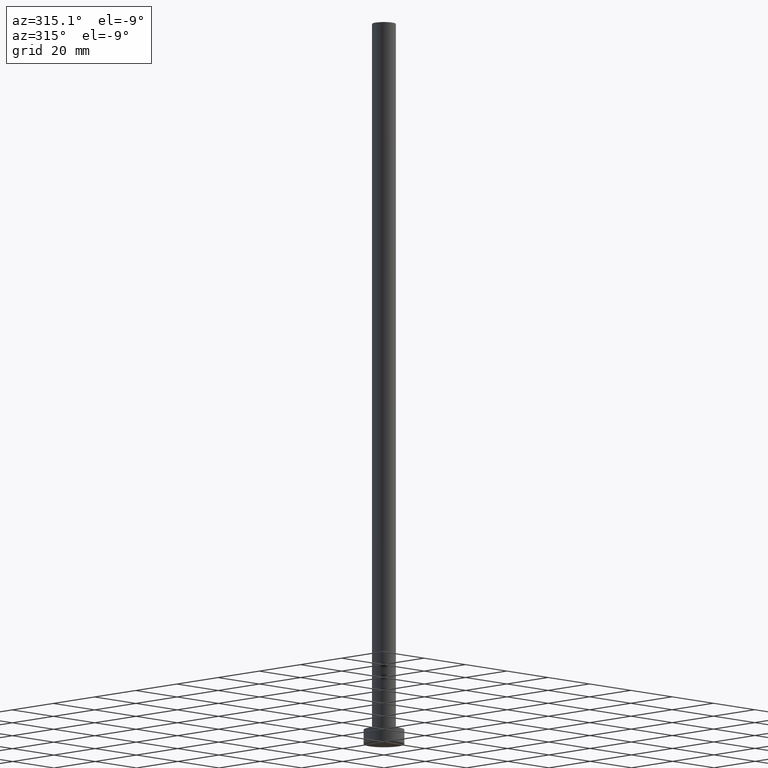
[diagram: clean part render]
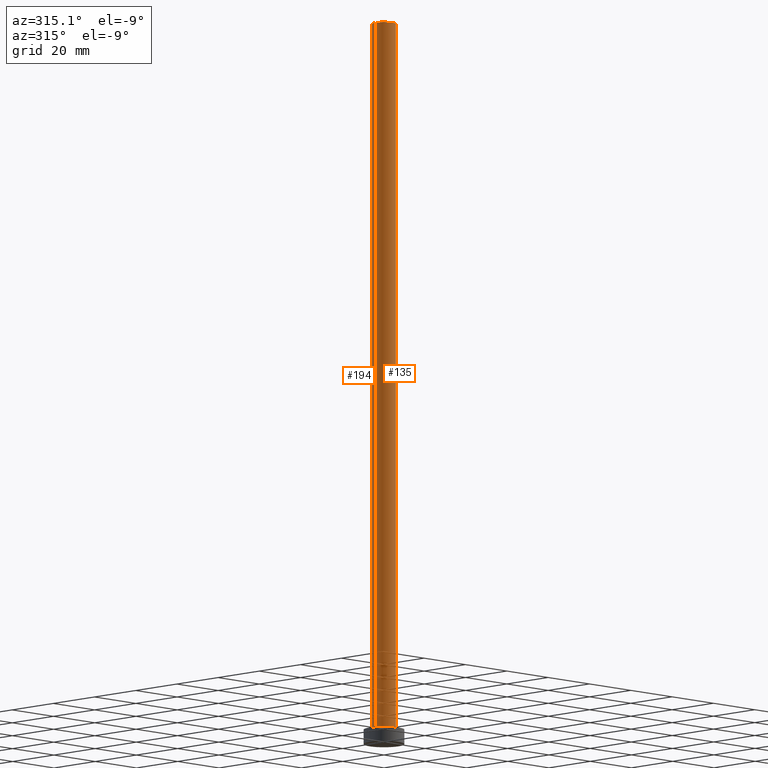
[diagram: same view with one multi-face feature highlighted, each face labeled with its STEP entity id]
A machine part, auxiliary view. The highlighted faces form ONE feature: a constant-radius fillet chain: 2 tangent blend faces with common blend radius 4.1 mm. The faces share edges in the B-rep.
Their STEP definitions:
[1] entity #194 (Cylinder):
#3 = EDGE_CURVE ( 'NONE', #57, #202, #38, .T. ) ;
#17 = CARTESIAN_POINT ( 'NONE',  ( -4.099999999999999645, 0.000000000000000000, 250.0000000000000000 ) ) ;
#22 = EDGE_CURVE ( 'NONE', #202, #201, #138, .T. ) ;
#38 = CIRCLE ( 'NONE', #73, 4.099999999999999645 ) ;
#42 = CARTESIAN_POINT ( 'NONE',  ( 4.099999999999999645, 5.021051876504147385E-16, 250.0000000000000000 ) ) ;
#44 = DIRECTION ( 'NONE',  ( -0.000000000000000000, -0.000000000000000000, -1.000000000000000000 ) ) ;
#49 = EDGE_CURVE ( 'NONE', #57, #114, #101, .T. ) ;
#57 = VERTEX_POINT ( 'NONE', #152 ) ;
#59 = AXIS2_PLACEMENT_3D ( 'NONE', #241, #70, #67 ) ;
#62 = CARTESIAN_POINT ( 'NONE',  ( 0.000000000000000000, 0.000000000000000000, 250.0000000000000000 ) ) ;
#67 = DIRECTION ( 'NONE',  ( 1.000000000000000000, 0.000000000000000000, 0.000000000000000000 ) ) ;
#70 = DIRECTION ( 'NONE',  ( 0.000000000000000000, 0.000000000000000000, 1.000000000000000000 ) ) ;
#71 = DIRECTION ( 'NONE',  ( 0.000000000000000000, 0.000000000000000000, 1.000000000000000000 ) ) ;
#73 = AXIS2_PLACEMENT_3D ( 'NONE', #239, #71, #117 ) ;
#79 = CARTESIAN_POINT ( 'NONE',  ( -4.099999999999999645, 0.000000000000000000, 5.000000000000000000 ) ) ;
#82 = CARTESIAN_POINT ( 'NONE',  ( 4.099999999999999645, 5.021051876504147385E-16, 5.000000000000000000 ) ) ;
#87 = VECTOR ( 'NONE', #96, 1000.000000000000000 ) ;
#96 = DIRECTION ( 'NONE',  ( -0.000000000000000000, -0.000000000000000000, -1.000000000000000000 ) ) ;
#101 = LINE ( 'NONE', #42, #102 ) ;
#102 = VECTOR ( 'NONE', #132, 1000.000000000000000 ) ;
#114 = VERTEX_POINT ( 'NONE', #82 ) ;
#117 = DIRECTION ( 'NONE',  ( 1.000000000000000000, 0.000000000000000000, 0.000000000000000000 ) ) ;
#129 = ORIENTED_EDGE ( 'NONE', *, *, #22, .F. ) ;
#132 = DIRECTION ( 'NONE',  ( -0.000000000000000000, -0.000000000000000000, -1.000000000000000000 ) ) ;
#138 = LINE ( 'NONE', #203, #87 ) ;
#152 = CARTESIAN_POINT ( 'NONE',  ( 4.099999999999999645, 5.021051876504147385E-16, 250.0000000000000000 ) ) ;
#160 = ORIENTED_EDGE ( 'NONE', *, *, #49, .T. ) ;
#171 = CYLINDRICAL_SURFACE ( 'NONE', #250, 4.099999999999999645 ) ;
#173 = DIRECTION ( 'NONE',  ( -1.000000000000000000, 0.000000000000000000, 0.000000000000000000 ) ) ;
#175 = FACE_OUTER_BOUND ( 'NONE', #184, .T. ) ;
#180 = ORIENTED_EDGE ( 'NONE', *, *, #3, .F. ) ;
#184 = EDGE_LOOP ( 'NONE', ( #180, #160, #240, #129 ) ) ;
#194 = ADVANCED_FACE ( 'NONE', ( #175 ), #171, .T. ) ;
#201 = VERTEX_POINT ( 'NONE', #79 ) ;
#202 = VERTEX_POINT ( 'NONE', #17 ) ;
#203 = CARTESIAN_POINT ( 'NONE',  ( -4.099999999999999645, 0.000000000000000000, 250.0000000000000000 ) ) ;
#218 = CIRCLE ( 'NONE', #59, 4.099999999999999645 ) ;
#229 = EDGE_CURVE ( 'NONE', #114, #201, #218, .T. ) ;
#239 = CARTESIAN_POINT ( 'NONE',  ( 0.000000000000000000, 0.000000000000000000, 250.0000000000000000 ) ) ;
#240 = ORIENTED_EDGE ( 'NONE', *, *, #229, .T. ) ;
#241 = CARTESIAN_POINT ( 'NONE',  ( 0.000000000000000000, 0.000000000000000000, 5.000000000000000000 ) ) ;
#250 = AXIS2_PLACEMENT_3D ( 'NONE', #62, #44, #173 ) ;
[2] entity #135 (Cylinder):
#6 = CIRCLE ( 'NONE', #28, 4.099999999999999645 ) ;
#17 = CARTESIAN_POINT ( 'NONE',  ( -4.099999999999999645, 0.000000000000000000, 250.0000000000000000 ) ) ;
#22 = EDGE_CURVE ( 'NONE', #202, #201, #138, .T. ) ;
#28 = AXIS2_PLACEMENT_3D ( 'NONE', #150, #211, #253 ) ;
#42 = CARTESIAN_POINT ( 'NONE',  ( 4.099999999999999645, 5.021051876504147385E-16, 250.0000000000000000 ) ) ;
#48 = EDGE_LOOP ( 'NONE', ( #144, #198, #159, #116 ) ) ;
#49 = EDGE_CURVE ( 'NONE', #57, #114, #101, .T. ) ;
#57 = VERTEX_POINT ( 'NONE', #152 ) ;
#60 = CARTESIAN_POINT ( 'NONE',  ( 0.000000000000000000, 0.000000000000000000, 250.0000000000000000 ) ) ;
#61 = CYLINDRICAL_SURFACE ( 'NONE', #64, 4.099999999999999645 ) ;
#64 = AXIS2_PLACEMENT_3D ( 'NONE', #60, #230, #107 ) ;
#79 = CARTESIAN_POINT ( 'NONE',  ( -4.099999999999999645, 0.000000000000000000, 5.000000000000000000 ) ) ;
#82 = CARTESIAN_POINT ( 'NONE',  ( 4.099999999999999645, 5.021051876504147385E-16, 5.000000000000000000 ) ) ;
#87 = VECTOR ( 'NONE', #96, 1000.000000000000000 ) ;
#96 = DIRECTION ( 'NONE',  ( -0.000000000000000000, -0.000000000000000000, -1.000000000000000000 ) ) ;
#101 = LINE ( 'NONE', #42, #102 ) ;
#102 = VECTOR ( 'NONE', #132, 1000.000000000000000 ) ;
#107 = DIRECTION ( 'NONE',  ( -1.000000000000000000, 0.000000000000000000, 0.000000000000000000 ) ) ;
#114 = VERTEX_POINT ( 'NONE', #82 ) ;
#116 = ORIENTED_EDGE ( 'NONE', *, *, #166, .T. ) ;
#132 = DIRECTION ( 'NONE',  ( -0.000000000000000000, -0.000000000000000000, -1.000000000000000000 ) ) ;
#135 = ADVANCED_FACE ( 'NONE', ( #252 ), #61, .T. ) ;
#138 = LINE ( 'NONE', #203, #87 ) ;
#143 = CARTESIAN_POINT ( 'NONE',  ( 0.000000000000000000, 0.000000000000000000, 250.0000000000000000 ) ) ;
#144 = ORIENTED_EDGE ( 'NONE', *, *, #49, .F. ) ;
#150 = CARTESIAN_POINT ( 'NONE',  ( 0.000000000000000000, 0.000000000000000000, 5.000000000000000000 ) ) ;
#152 = CARTESIAN_POINT ( 'NONE',  ( 4.099999999999999645, 5.021051876504147385E-16, 250.0000000000000000 ) ) ;
#159 = ORIENTED_EDGE ( 'NONE', *, *, #22, .T. ) ;
#166 = EDGE_CURVE ( 'NONE', #201, #114, #6, .T. ) ;
#178 = DIRECTION ( 'NONE',  ( 0.000000000000000000, 0.000000000000000000, 1.000000000000000000 ) ) ;
#196 = AXIS2_PLACEMENT_3D ( 'NONE', #143, #178, #216 ) ;
#198 = ORIENTED_EDGE ( 'NONE', *, *, #246, .F. ) ;
#201 = VERTEX_POINT ( 'NONE', #79 ) ;
#202 = VERTEX_POINT ( 'NONE', #17 ) ;
#203 = CARTESIAN_POINT ( 'NONE',  ( -4.099999999999999645, 0.000000000000000000, 250.0000000000000000 ) ) ;
#211 = DIRECTION ( 'NONE',  ( 0.000000000000000000, 0.000000000000000000, 1.000000000000000000 ) ) ;
#216 = DIRECTION ( 'NONE',  ( 1.000000000000000000, 0.000000000000000000, 0.000000000000000000 ) ) ;
#230 = DIRECTION ( 'NONE',  ( -0.000000000000000000, -0.000000000000000000, -1.000000000000000000 ) ) ;
#246 = EDGE_CURVE ( 'NONE', #202, #57, #247, .T. ) ;
#247 = CIRCLE ( 'NONE', #196, 4.099999999999999645 ) ;
#252 = FACE_OUTER_BOUND ( 'NONE', #48, .T. ) ;
#253 = DIRECTION ( 'NONE',  ( 1.000000000000000000, 0.000000000000000000, 0.000000000000000000 ) ) ;